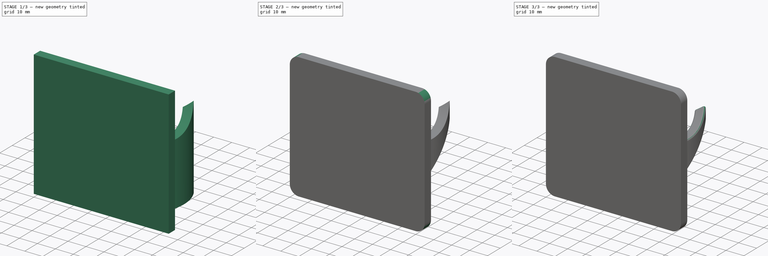
[diagram: build sequence overview — one tinted view per stage of 3, left to right]
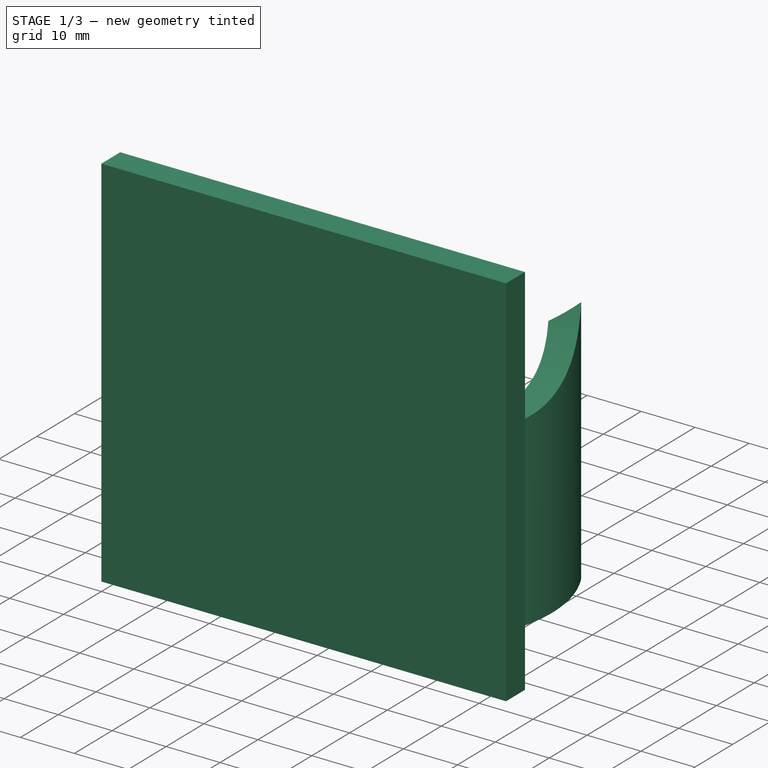
[diagram: stage 1 of 3 — iso view after this stage's code; geometry added in this stage tinted green]
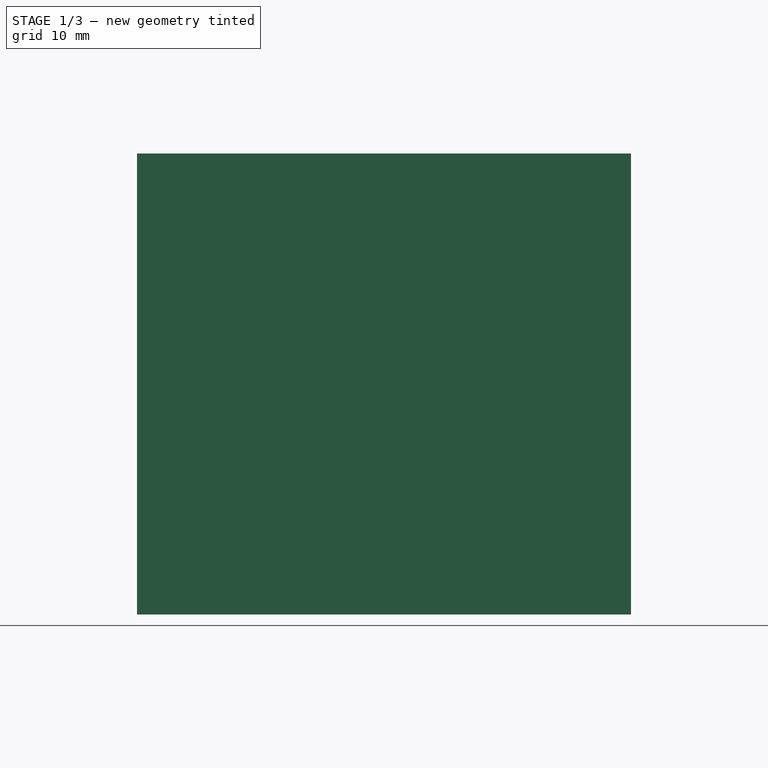
[diagram: stage 1 of 3 — front view after this stage's code; geometry added in this stage tinted green]
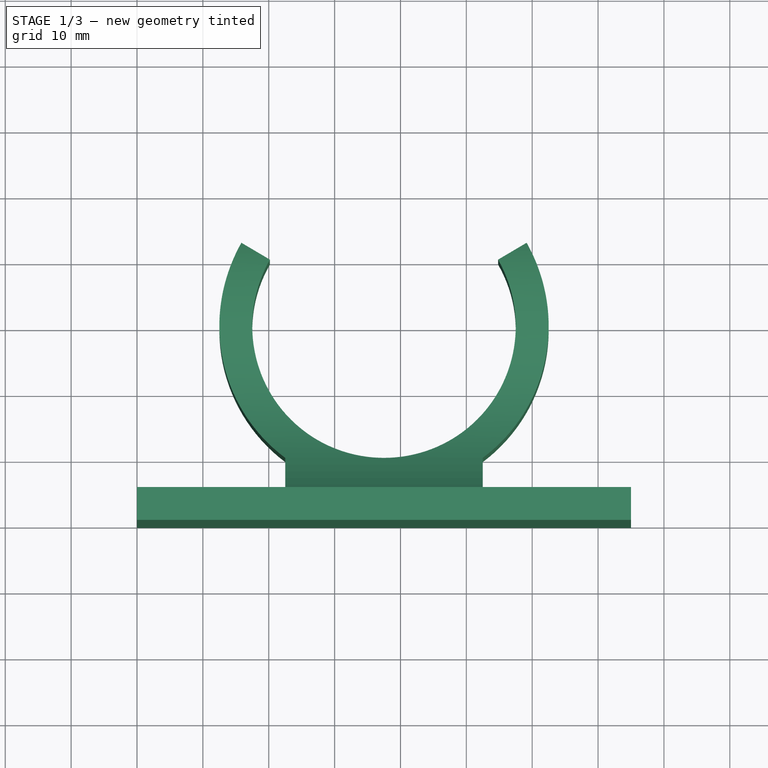
[diagram: stage 1 of 3 — top view after this stage's code; geometry added in this stage tinted green]
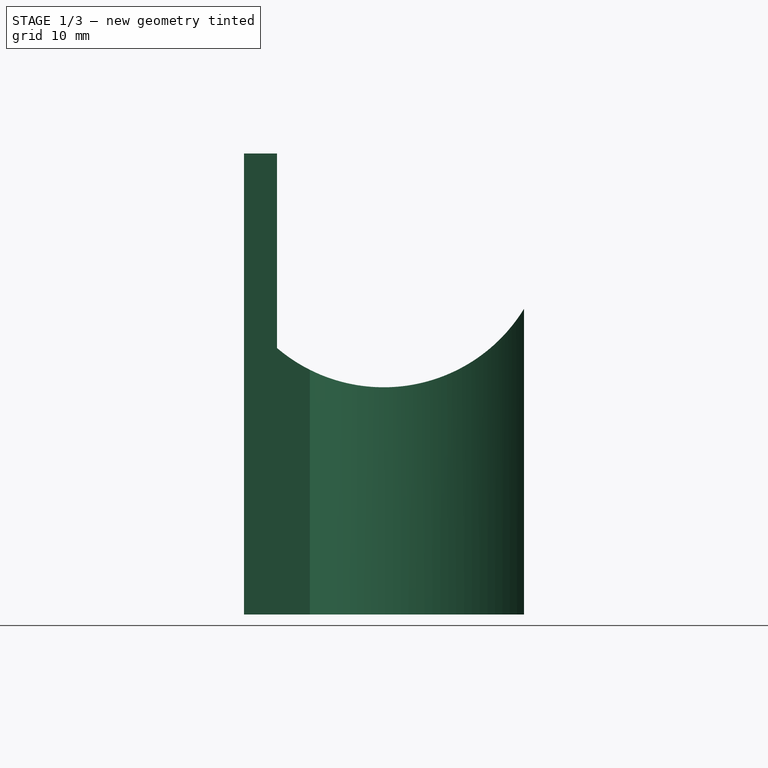
[diagram: stage 1 of 3 — right view after this stage's code; geometry added in this stage tinted green]
FCSTD DOCUMENT  (FreeCAD 0.21R33771 (Git))
Label: broom_hook_awning2
License: All rights reserved
LicenseURL: https://en.wikipedia.org/wiki/All_rights_reserved
objects: Sketcher::SketchObject×3, PartDesign::Fillet×3, PartDesign::Pocket×2, Spreadsheet::Sheet×1, PartDesign::Pad×1, PartDesign::Body×1
note: 16 computed .brp shape members not serialized (recipe doc carries the construction recipe); baked Part::Feature solids carry a one-line shape summary decoded from their .brp

FEATURE [Spreadsheet::Sheet] Spreadsheet  label="dimensions"
  cells = A1='width; B1(width)==75 mm; A2='height; B2(height)==50 mm; A3='depth; B3(depth)==5 mm; A4='diameter; B4(diameter)==40 mm
FEATURE [Sketcher::SketchObject] Sketch
  FullyConstrained = true
  MapMode = 5
  Support = -> [XY_Plane]
  expr: Constraints[0] = <<dimensions>>.diameter
  expr: Constraints[14] = 37.5 mm + <<dimensions>>.depth
  expr: Constraints[17] = <<dimensions>>.depth
  expr: Constraints[1] = <<dimensions>>.diameter + 2 * <<dimensions>>.depth
  expr: Constraints[28] = <<dimensions>>.depth
  expr: Constraints[29] = <<dimensions>>.width
  expr: Constraints[3] = <<dimensions>>.width / 2
  expr: Constraints[4] = <<dimensions>>.diameter / 2
  sketch-geometry (12):
    g0: ArcOfCircle CenterX=37.5 CenterY=30 CenterZ=0 NormalX=0 NormalY=0 NormalZ=1 AngleXU=0 Radius=20 StartAngle=2.61799 EndAngle=6.80678
    g1: ArcOfCircle CenterX=37.5 CenterY=30 CenterZ=0 NormalX=0 NormalY=0 NormalZ=1 AngleXU=0 Radius=25 StartAngle=5.35589 EndAngle=6.80678
    g2: LineSegment StartX=15.8494 StartY=42.5 StartZ=0 EndX=20.1795 EndY=40 EndZ=0
    g3: LineSegment StartX=54.8205 StartY=40 StartZ=0 EndX=59.1506 EndY=42.5 EndZ=0
    g4: ArcOfCircle CenterX=37.5 CenterY=30 CenterZ=0 NormalX=0 NormalY=0 NormalZ=1 AngleXU=0 Radius=25 StartAngle=2.61799 EndAngle=4.06889
    g5: LineSegment StartX=52.5 StartY=5 StartZ=0 EndX=52.5 EndY=10 EndZ=0
    g6: LineSegment StartX=22.5 StartY=10 StartZ=0 EndX=22.5 EndY=5 EndZ=0
    g7: LineSegment StartX=0 StartY=0 StartZ=0 EndX=75 EndY=0 EndZ=0
    g8: LineSegment StartX=75 StartY=0 StartZ=0 EndX=75 EndY=5 EndZ=0
    g9: LineSegment StartX=75 StartY=5 StartZ=0 EndX=52.5 EndY=5 EndZ=0
    g10: LineSegment StartX=0 StartY=5 StartZ=0 EndX=0 EndY=0 EndZ=0
    g11: LineSegment StartX=22.5 StartY=5 StartZ=0 EndX=0 EndY=5 EndZ=0
  constraints (36):
    c: Diameter(g0) = 40
    c: Diameter(g1) = 50
    c: Coincident(g1,g0)
    c: DistanceX(g-1,g0) = 37.5
    c: DistanceY(g4,g0) = 20
    c: Angle(g3,g2) = 2.0944
    c: Horizontal(g1,g4)
    c: Equal(g1,g4)
    c: Coincident(g4,g2)
    c: Coincident(g1,g4)
    c: Coincident(g0,g2)
    c: Coincident(g3,g0)
    c: Coincident(g3,g1)
    c: Horizontal(g2,g1)
    c: DistanceY(g-1,g2) = 42.5
    c: Vertical(g5)
    c: Vertical(g6)
    c: DistanceY(g5,g5) = 5
    c: Horizontal(g0,g0)
    c: Coincident(g7,g8)
    c: Coincident(g8,g9)
    c: Coincident(g11,g10)
    c: Coincident(g10,g7)
    c: Horizontal(g7)
    c: Horizontal(g9)
    c: Vertical(g8)
    c: Vertical(g10)
    c: Coincident(g7,g-1)
    c: DistanceY(g8,g8) = 5
    c: DistanceX(g7,g7) = 75
    c: Coincident(g6,g4)
    c: Coincident(g5,g1)
    c: Coincident(g11,g6)
    c: Horizontal(g11)
    c: Horizontal(g6,g5)
    c: Coincident(g5,g9)
FEATURE [PartDesign::Pad] Pad
  Direction = (0,0,1)
  Length = 70
  Length2 = 10
  Profile = -> Sketch
  ReferenceAxis = -> Sketch [N_Axis]
  Type = 0
FEATURE [Sketcher::SketchObject] Sketch001
  FullyConstrained = true
  MapMode = 5
  Placement = pos=(0,0,0) rot=(0.57735,0.57735,0.57735;2.0944rad)
  Support = -> [YZ_Plane]
  sketch-geometry (2):
    g0: ArcOfCircle CenterX=21.2071 CenterY=59.5 CenterZ=0 NormalX=0 NormalY=0 NormalZ=1 AngleXU=0 Radius=25 StartAngle=4.00706 EndAngle=8.55931
    g1: LineSegment StartX=5 StartY=40.465 StartZ=0 EndX=5 EndY=78.535 EndZ=0
  constraints (7):
    c: Diameter(g0) = 50
    c: Vertical(g1)
    c: Coincident(g0,g1)
    c: Coincident(g0,g1)
    c: DistanceX(g-1,g0) = 5
    c: DistanceY(g1,g1) = 38.07
    c: DistanceY(g-1,g0) = 59.5
FEATURE [PartDesign::Pocket] Pocket
  BaseFeature = -> Pad
  Direction = (-1,2e-16,-3e-16)
  Length = 5
  Length2 = 5
  Profile = -> Sketch001
  ReferenceAxis = -> Sketch001 [N_Axis]
  Reversed = true
  Type = 1
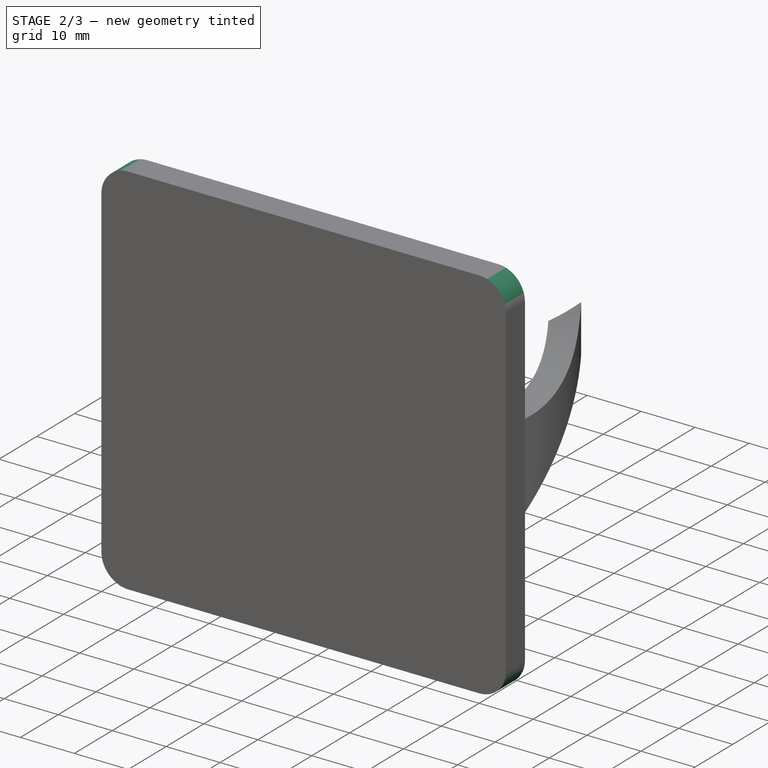
[diagram: stage 2 of 3 — iso view after this stage's code; geometry added in this stage tinted green]
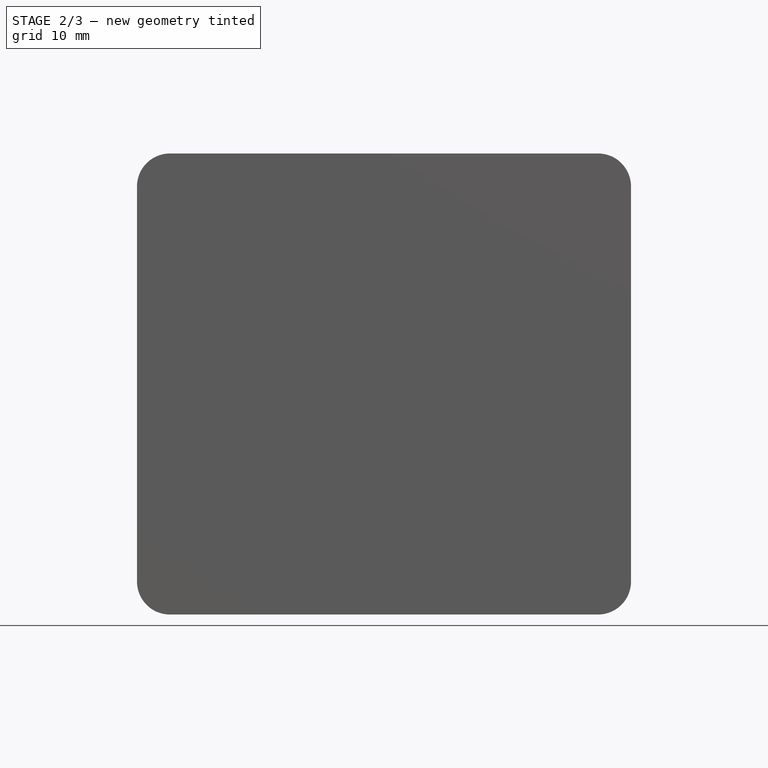
[diagram: stage 2 of 3 — front view after this stage's code; geometry added in this stage tinted green]
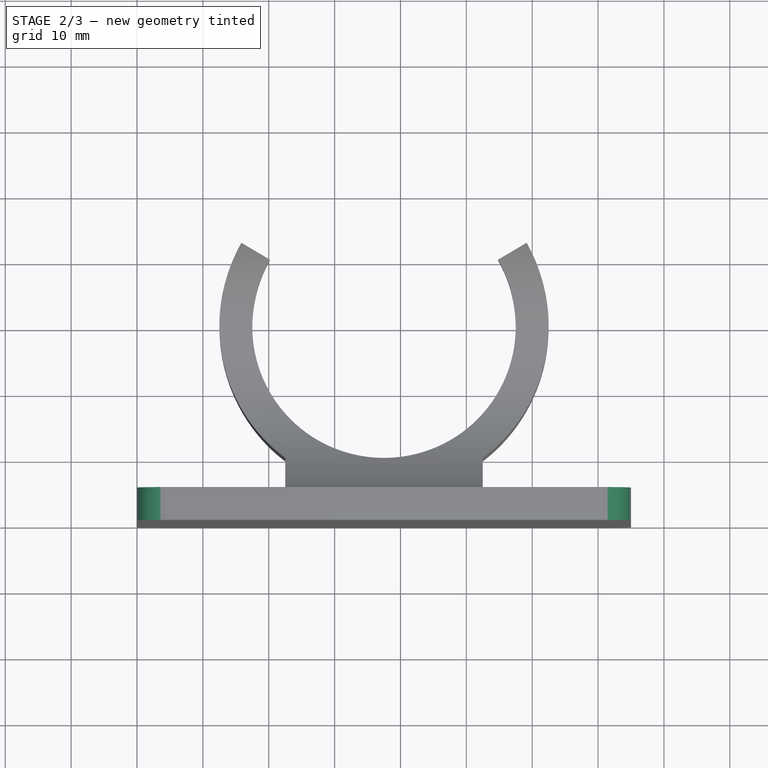
[diagram: stage 2 of 3 — top view after this stage's code; geometry added in this stage tinted green]
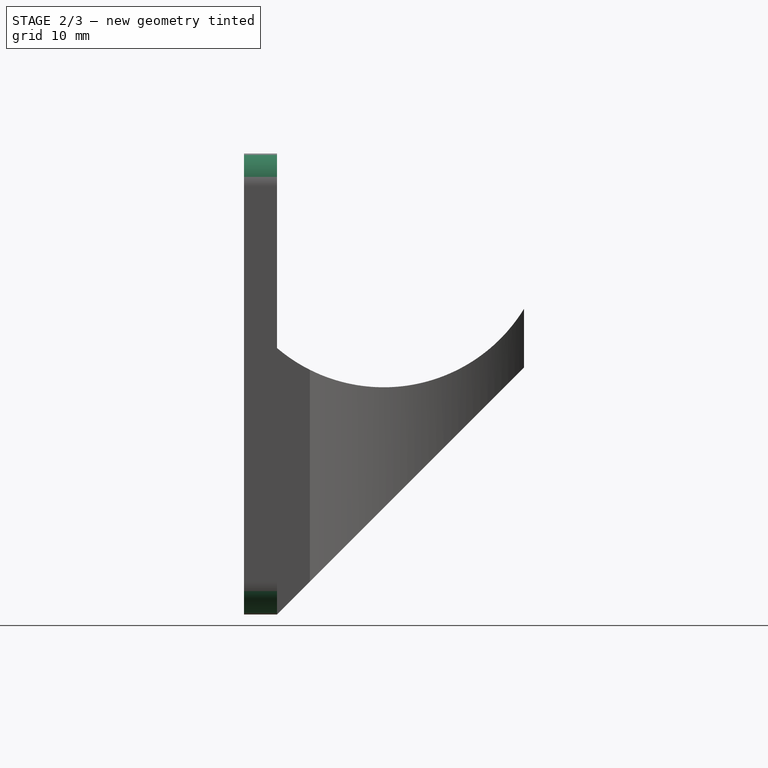
[diagram: stage 2 of 3 — right view after this stage's code; geometry added in this stage tinted green]
FEATURE [Sketcher::SketchObject] Sketch002
  FullyConstrained = true
  MapMode = 5
  Placement = pos=(0,0,0) rot=(0.57735,0.57735,0.57735;2.0944rad)
  Support = -> [YZ_Plane]
  expr: Constraints[6] = <<dimensions>>.depth
  sketch-geometry (3):
    g0: LineSegment StartX=5 StartY=0 StartZ=0 EndX=42.65 EndY=37.65 EndZ=0
    g1: LineSegment StartX=42.65 StartY=37.65 StartZ=0 EndX=42.65 EndY=0 EndZ=0
    g2: LineSegment StartX=42.65 StartY=0 StartZ=0 EndX=5 EndY=0 EndZ=0
  constraints (9):
    c: PointOnObject(g0,g-1)
    c: Coincident(g0,g1)
    c: Vertical(g1)
    c: Coincident(g1,g2)
    c: Coincident(g2,g0)
    c: Horizontal(g2)
    c: DistanceX(g-1,g0) = 5
    c: Angle(g2,g0) = 0.785398
    c: DistanceX(g-1,g1) = 42.65
FEATURE [PartDesign::Pocket] Pocket001
  BaseFeature = -> Pocket
  Direction = (-1,2e-16,-3e-16)
  Length = 5
  Length2 = 5
  Profile = -> Sketch002
  ReferenceAxis = -> Sketch002 [N_Axis]
  Reversed = true
  Type = 1
FEATURE [PartDesign::Fillet] Fillet
  Base = -> Pocket001 [Edge41,Edge28,Edge30,Edge45]
  BaseFeature = -> Pocket001
  Radius = 5
  SupportTransform = false
  UseAllEdges = false
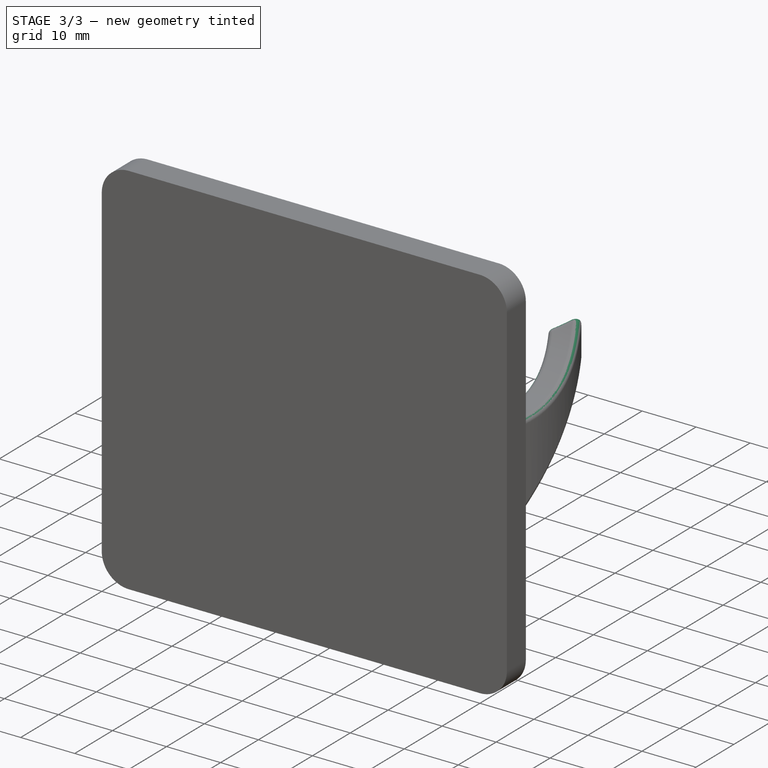
[diagram: stage 3 of 3 — iso view after this stage's code; geometry added in this stage tinted green]
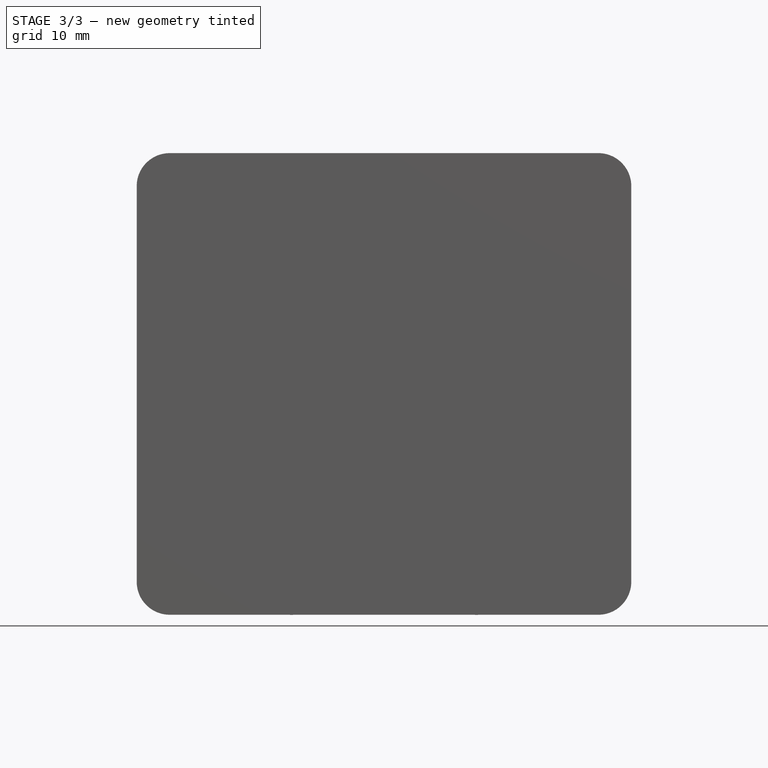
[diagram: stage 3 of 3 — front view after this stage's code; geometry added in this stage tinted green]
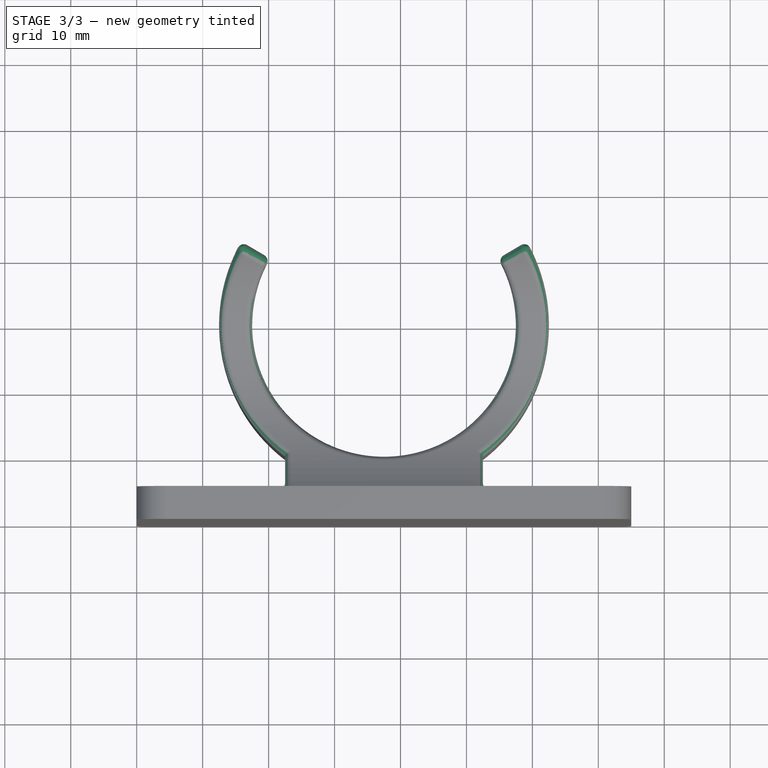
[diagram: stage 3 of 3 — top view after this stage's code; geometry added in this stage tinted green]
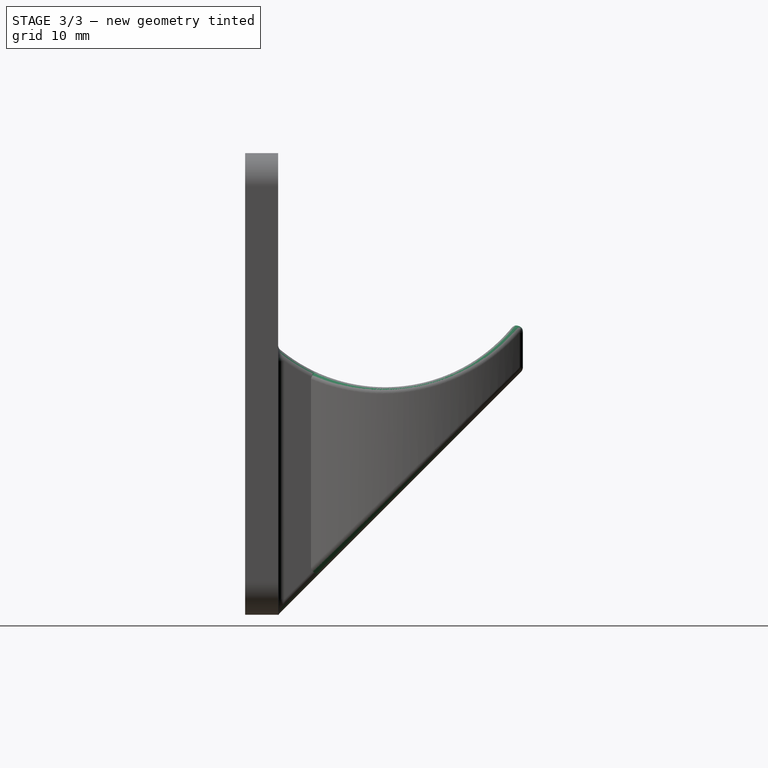
[diagram: stage 3 of 3 — right view after this stage's code; geometry added in this stage tinted green]
FEATURE [PartDesign::Fillet] Fillet003
  Base = -> Fillet [Edge19,Edge16,Edge18,Edge13,Edge14,Edge40,Edge38,Edge32,Edge50,Edge49,Edge46,Edge45,Edge15,Edge41,Edge42,Edge43,Edge44,Edge47,Edge17,Edge48]
  BaseFeature = -> Fillet
  Radius = 1
  SupportTransform = false
  UseAllEdges = false
FEATURE [PartDesign::Fillet] Fillet004
  Base = -> Fillet003 [Edge63]
  BaseFeature = -> Fillet003
  Radius = 1
  SupportTransform = false
  UseAllEdges = false
FEATURE [PartDesign::Body] Body  label="Körper"
  Group = -> [Sketch,Pad,Sketch001,Pocket,Sketch002,Pocket001,Fillet,Fillet003,Fillet004]
  Origin = -> Origin
  Tip = -> Fillet004
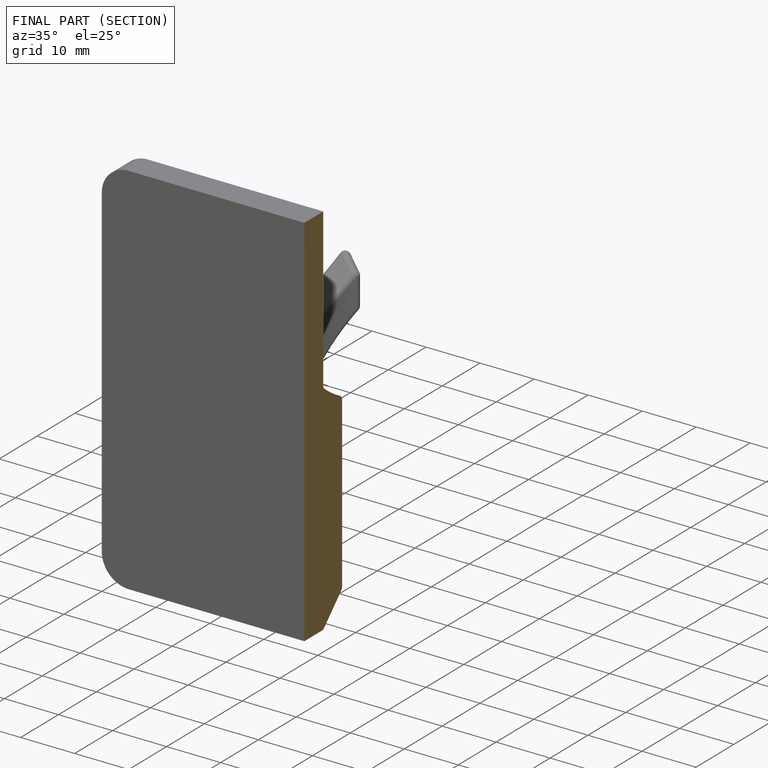
[diagram: finished part — half-section view (interior)]
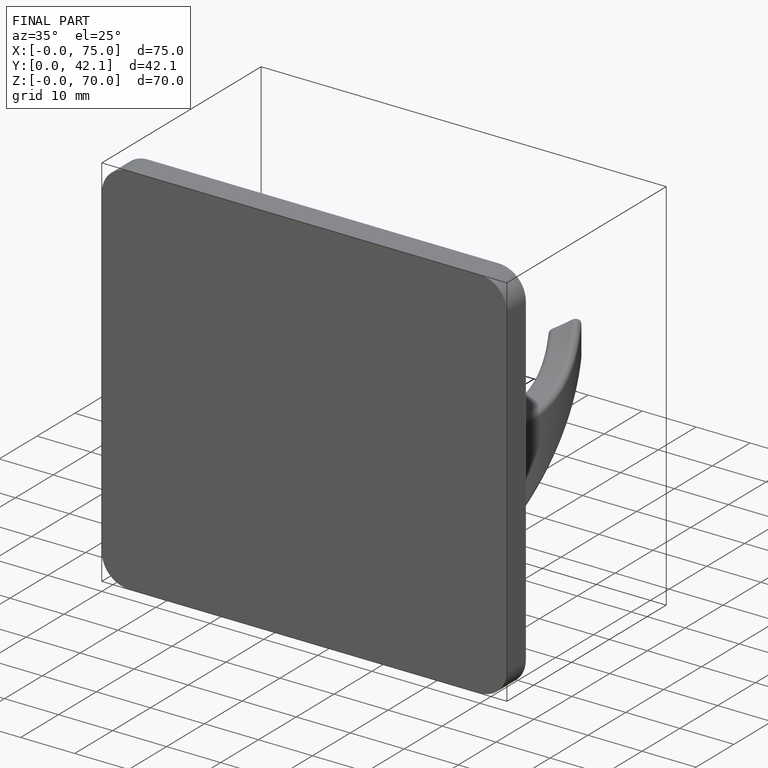
[diagram: finished part — iso view with bounding-box wireframe]
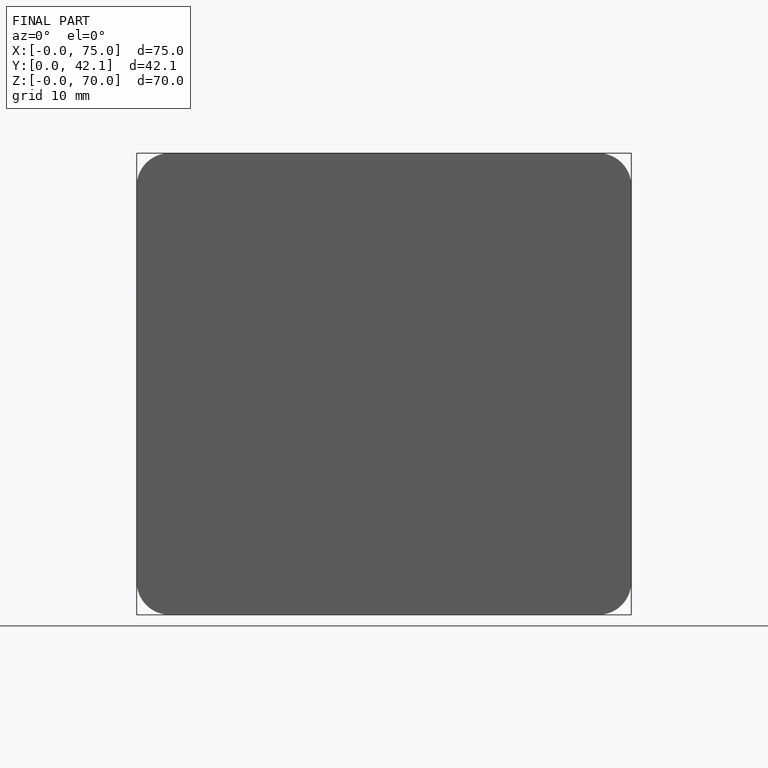
[diagram: finished part — front view with bounding-box wireframe]
